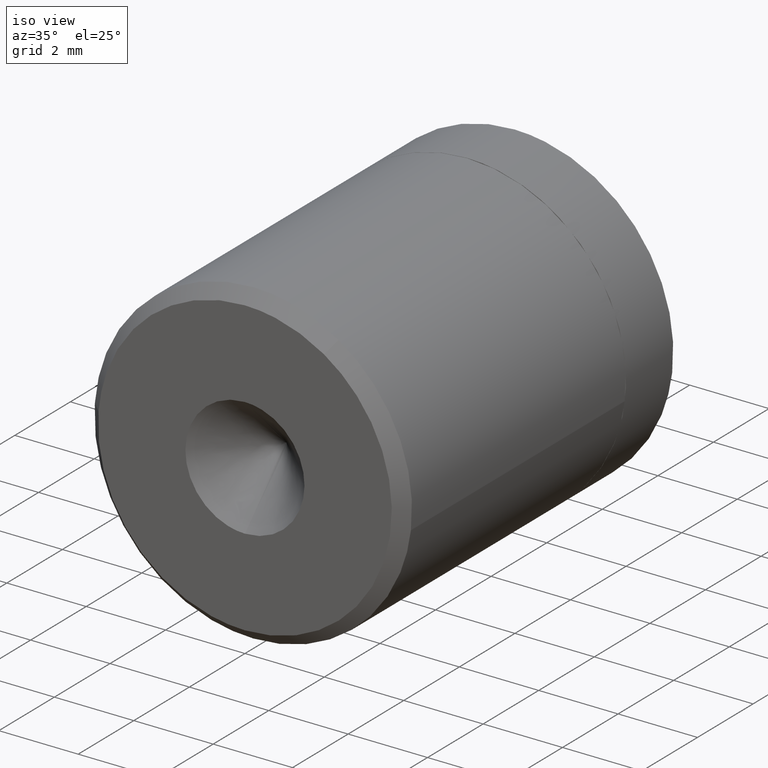
[diagram: clean part render]
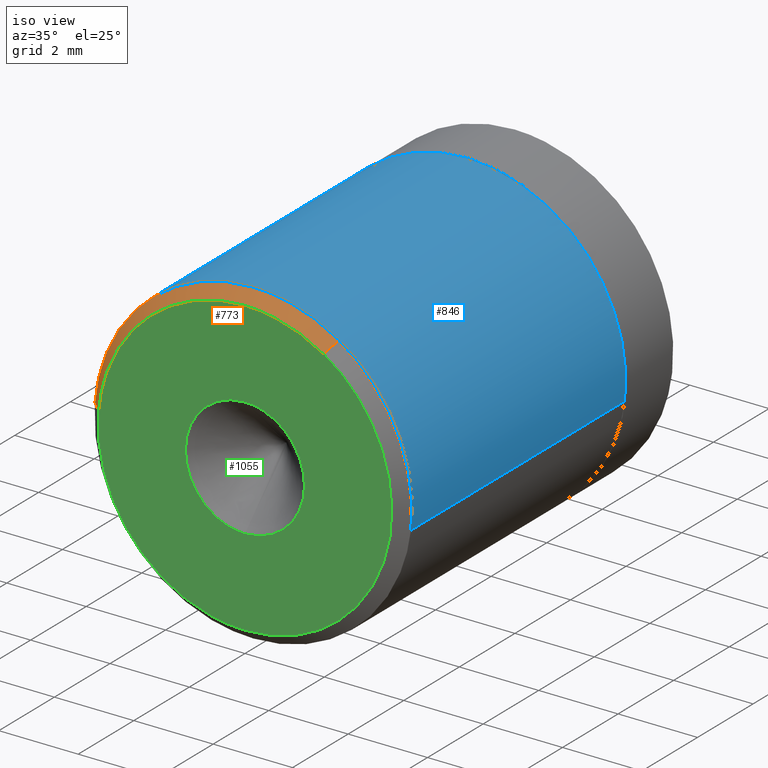
[diagram: same view with three faces highlighted in distinct colors, each labeled with its STEP entity id]
A machine part, iso view with three faces highlighted in distinct colors.
Their STEP definitions:

[orange] entity #773 — the highlighted face is a freeform B-spline surface patch.
#582=CARTESIAN_POINT('',(2.151402098084278,0.300003000000068,3.372158509376904));
#583=VERTEX_POINT('',#582);
#599=CARTESIAN_POINT('',(1.990047397902964,1.696192E-013,3.119247337756639));
#600=VERTEX_POINT('',#599);
#601=CARTESIAN_POINT('',(1.990047397902964,1.696192E-013,3.119247337756639));
#602=CARTESIAN_POINT('',(2.151402098084278,0.300003000000068,3.372158509376904));
#603=QUASI_UNIFORM_CURVE('',1,(#601,#602),.UNSPECIFIED.,.F.,.U.);
#604=EDGE_CURVE('',#600,#583,#603,.T.);
#623=CARTESIAN_POINT('',(-3.688593137895713,1.191157E-012,0.290298575743090));
#624=VERTEX_POINT('',#623);
#640=CARTESIAN_POINT('',(-3.987667341097883,0.300003000000101,0.313836225993938));
#641=VERTEX_POINT('',#640);
#642=CARTESIAN_POINT('',(-3.688593137895713,1.191157E-012,0.290298575743090));
#643=CARTESIAN_POINT('',(-3.987667341097883,0.300003000000101,0.313836225993938));
#644=QUASI_UNIFORM_CURVE('',1,(#642,#643),.UNSPECIFIED.,.F.,.U.);
#645=EDGE_CURVE('',#624,#641,#644,.T.);
#695=CARTESIAN_POINT('',(-3.681116282815173,-0.007500075000000,0.289710134477449));
#696=CARTESIAN_POINT('',(-3.391406148337723,-0.007500075000000,3.970826417292622));
#697=CARTESIAN_POINT('',(0.289710134477451,-0.007500075000000,3.681116282815171));
#698=CARTESIAN_POINT('',(1.208793519046832,-0.007500075000000,3.608782851735413));
#699=CARTESIAN_POINT('',(1.986013530395583,-0.007500075000000,3.112924558467743));
#700=CARTESIAN_POINT('',(-3.995331117554910,0.307690576875004,0.314439378281082));
#701=CARTESIAN_POINT('',(-3.680891739273826,0.307690576875004,4.309770495835993));
#702=CARTESIAN_POINT('',(0.314439378281084,0.307690576875004,3.995331117554908));
#703=CARTESIAN_POINT('',(1.311974409472628,0.307690576875004,3.916823407982783));
#704=CARTESIAN_POINT('',(2.155536812275419,0.307690576875004,3.378639358150241));
#712=(BOUNDED_SURFACE()B_SPLINE_SURFACE(2,1,((#695,#700),(#696,#701),(#697,#702),(#698,#703),(#699,#704)),.UNSPECIFIED.,.F.,.F.,.U.)B_SPLINE_SURFACE_WITH_KNOTS((3,2,3),(2,2),(0.0,6.640150708847104,8.764998935678179),(0.0,0.445743923008503),.UNSPECIFIED.)GEOMETRIC_REPRESENTATION_ITEM()RATIONAL_B_SPLINE_SURFACE(((1.0,1.0),(0.707106781186548,0.707106781186548),(1.0,1.0),(0.906274169979695,0.906274169979695),(0.872532871172386,0.872532871172386)))REPRESENTATION_ITEM('')SURFACE());
#713=CARTESIAN_POINT('',(0.0,0.300003000000004,3.999997999999998));
#714=VERTEX_POINT('',#713);
#715=CARTESIAN_POINT('',(2.151402098084278,0.300003000000068,3.372158509376904));
#716=CARTESIAN_POINT('',(1.167311637862257,0.300003000000004,3.999997999999998));
#717=CARTESIAN_POINT('',(0.0,0.300003000000004,3.999997999999998));
#725=(BOUNDED_CURVE()B_SPLINE_CURVE(2,(#715,#716,#717),.UNSPECIFIED.,.F.,.U.)B_SPLINE_CURVE_WITH_KNOTS((3,3),(0.407950112627478,0.500000000000000),.UNSPECIFIED.)CURVE()GEOMETRIC_REPRESENTATION_ITEM()RATIONAL_B_SPLINE_CURVE((0.863729296954879,0.892156848784185,1.0))REPRESENTATION_ITEM(''));
#726=EDGE_CURVE('',#583,#714,#725,.T.);
#727=ORIENTED_EDGE('',*,*,#726,.T.);
#728=CARTESIAN_POINT('',(0.0,0.300003000000004,3.999997999999998));
#729=CARTESIAN_POINT('',(-3.697560117850483,0.300003000000004,3.999997999999998));
#730=CARTESIAN_POINT('',(-3.987667341097883,0.300003000000101,0.313836225993938));
#738=(BOUNDED_CURVE()B_SPLINE_CURVE(2,(#728,#729,#730),.UNSPECIFIED.,.F.,.U.)B_SPLINE_CURVE_WITH_KNOTS((3,3),(0.500000000000000,0.736331300632704),.UNSPECIFIED.)CURVE()GEOMETRIC_REPRESENTATION_ITEM()RATIONAL_B_SPLINE_CURVE((1.0,0.723120658605271,0.969723356171684))REPRESENTATION_ITEM(''));
#739=EDGE_CURVE('',#714,#641,#738,.T.);
#740=ORIENTED_EDGE('',*,*,#739,.T.);
#741=ORIENTED_EDGE('',*,*,#645,.F.);
#742=CARTESIAN_POINT('',(0.0,0.0,3.699998999999998));
#743=VERTEX_POINT('',#742);
#744=CARTESIAN_POINT('',(0.0,0.0,3.699998999999998));
#745=CARTESIAN_POINT('',(-3.420243894728016,0.0,3.699998999999999));
#746=CARTESIAN_POINT('',(-3.688593137895713,1.191157E-012,0.290298575743090));
#754=(BOUNDED_CURVE()B_SPLINE_CURVE(2,(#744,#745,#746),.UNSPECIFIED.,.F.,.U.)B_SPLINE_CURVE_WITH_KNOTS((3,3),(0.500000000000000,0.736331300631925),.UNSPECIFIED.)CURVE()GEOMETRIC_REPRESENTATION_ITEM()RATIONAL_B_SPLINE_CURVE((1.0,0.723120658606184,0.969723356170058))REPRESENTATION_ITEM(''));
#755=EDGE_CURVE('',#743,#624,#754,.T.);
#756=ORIENTED_EDGE('',*,*,#755,.F.);
#757=CARTESIAN_POINT('',(1.990047397902964,1.696192E-013,3.119247337756640));
#758=CARTESIAN_POINT('',(1.079763513078717,0.0,3.699998999999998));
#759=CARTESIAN_POINT('',(0.0,0.0,3.699998999999998));
#767=(BOUNDED_CURVE()B_SPLINE_CURVE(2,(#757,#758,#759),.UNSPECIFIED.,.F.,.U.)B_SPLINE_CURVE_WITH_KNOTS((3,3),(0.407950112627304,0.500000000000000),.UNSPECIFIED.)CURVE()GEOMETRIC_REPRESENTATION_ITEM()RATIONAL_B_SPLINE_CURVE((0.863729296954772,0.892156848783981,1.0))REPRESENTATION_ITEM(''));
#768=EDGE_CURVE('',#600,#743,#767,.T.);
#769=ORIENTED_EDGE('',*,*,#768,.F.);
#770=ORIENTED_EDGE('',*,*,#604,.T.);
#771=EDGE_LOOP('',(#727,#740,#741,#756,#769,#770));
#772=FACE_OUTER_BOUND('',#771,.T.);
#773=ADVANCED_FACE('',(#772),#712,.T.);

[blue] entity #846 — the highlighted face is a freeform B-spline surface patch.
#580=CARTESIAN_POINT('',(3.972036815488612,0.300002999999665,-0.472135082791438));
#581=VERTEX_POINT('',#580);
#582=CARTESIAN_POINT('',(2.151402098084278,0.300003000000068,3.372158509376904));
#583=VERTEX_POINT('',#582);
#584=CARTESIAN_POINT('',(3.972036815488612,0.300002999999665,-0.472135082791438));
#585=CARTESIAN_POINT('',(3.999998000000000,0.300003000000004,-0.236895511893493));
#586=CARTESIAN_POINT('',(3.999998000000000,0.300003000000004,-2.220446E-015));
#587=CARTESIAN_POINT('',(3.999998000000000,0.300003000000004,2.192773527669965));
#588=CARTESIAN_POINT('',(2.151402098084278,0.300003000000068,3.372158509376905));
#596=(BOUNDED_CURVE()B_SPLINE_CURVE(2,(#584,#585,#586,#587,#588),.UNSPECIFIED.,.F.,.U.)B_SPLINE_CURVE_WITH_KNOTS((3,2,3),(0.229562544944996,0.250000000000000,0.407950112627478),.UNSPECIFIED.)CURVE()GEOMETRIC_REPRESENTATION_ITEM()RATIONAL_B_SPLINE_CURVE((0.956026894192386,0.976056032018338,1.0,0.814949932402363,0.863729296954879))REPRESENTATION_ITEM(''));
#597=EDGE_CURVE('',#581,#583,#596,.T.);
#640=CARTESIAN_POINT('',(-3.987667341097883,0.300003000000101,0.313836225993938));
#641=VERTEX_POINT('',#640);
#647=CARTESIAN_POINT('',(-3.992537781884276,0.300002999999738,0.244192670297197));
#648=VERTEX_POINT('',#647);
#649=CARTESIAN_POINT('',(-3.987667341097882,0.300003000000101,0.313836225993938));
#650=CARTESIAN_POINT('',(-3.990406203231539,0.300003000000004,0.279035682978473));
#651=CARTESIAN_POINT('',(-3.992537781884276,0.300002999999738,0.244192670297197));
#659=(BOUNDED_CURVE()B_SPLINE_CURVE(2,(#649,#650,#651),.UNSPECIFIED.,.F.,.U.)B_SPLINE_CURVE_WITH_KNOTS((3,3),(0.736331300632703,0.739333022584997),.UNSPECIFIED.)CURVE()GEOMETRIC_REPRESENTATION_ITEM()RATIONAL_B_SPLINE_CURVE((0.969723356171682,0.972855538530931,0.976072170999833))REPRESENTATION_ITEM(''));
#660=EDGE_CURVE('',#641,#648,#659,.T.);
#713=CARTESIAN_POINT('',(0.0,0.300003000000004,3.999997999999998));
#714=VERTEX_POINT('',#713);
#715=CARTESIAN_POINT('',(2.151402098084278,0.300003000000068,3.372158509376904));
#716=CARTESIAN_POINT('',(1.167311637862257,0.300003000000004,3.999997999999998));
#717=CARTESIAN_POINT('',(0.0,0.300003000000004,3.999997999999998));
#725=(BOUNDED_CURVE()B_SPLINE_CURVE(2,(#715,#716,#717),.UNSPECIFIED.,.F.,.U.)B_SPLINE_CURVE_WITH_KNOTS((3,3),(0.407950112627478,0.500000000000000),.UNSPECIFIED.)CURVE()GEOMETRIC_REPRESENTATION_ITEM()RATIONAL_B_SPLINE_CURVE((0.863729296954879,0.892156848784185,1.0))REPRESENTATION_ITEM(''));
#726=EDGE_CURVE('',#583,#714,#725,.T.);
#728=CARTESIAN_POINT('',(0.0,0.300003000000004,3.999997999999998));
#729=CARTESIAN_POINT('',(-3.697560117850483,0.300003000000004,3.999997999999998));
#730=CARTESIAN_POINT('',(-3.987667341097883,0.300003000000101,0.313836225993938));
#738=(BOUNDED_CURVE()B_SPLINE_CURVE(2,(#728,#729,#730),.UNSPECIFIED.,.F.,.U.)B_SPLINE_CURVE_WITH_KNOTS((3,3),(0.500000000000000,0.736331300632704),.UNSPECIFIED.)CURVE()GEOMETRIC_REPRESENTATION_ITEM()RATIONAL_B_SPLINE_CURVE((1.0,0.723120658605271,0.969723356171684))REPRESENTATION_ITEM(''));
#739=EDGE_CURVE('',#714,#641,#738,.T.);
#774=CARTESIAN_POINT('',(3.972037112445138,8.182249925000001,-0.472136820592801));
#775=CARTESIAN_POINT('',(3.985549465406806,8.182249925000001,-0.358458824937184));
#776=CARTESIAN_POINT('',(3.992538195552668,8.182249925000001,-0.244194097090891));
#777=CARTESIAN_POINT('',(4.236732292643556,8.182249925000001,3.748344098461778));
#778=CARTESIAN_POINT('',(0.244194097090888,8.182249925000001,3.992538195552666));
#779=CARTESIAN_POINT('',(-3.748344098461780,8.182249925000001,4.236732292643555));
#780=CARTESIAN_POINT('',(-3.992538195552668,8.182249925000001,0.244194097090886));
#781=CARTESIAN_POINT('',(3.972037112445138,0.102946826875003,-0.472136820592801));
#782=CARTESIAN_POINT('',(3.985549465406806,0.102946826875002,-0.358458824937184));
#783=CARTESIAN_POINT('',(3.992538195552668,0.102946826875003,-0.244194097090891));
#784=CARTESIAN_POINT('',(4.236732292643556,0.102946826875002,3.748344098461778));
#785=CARTESIAN_POINT('',(0.244194097090888,0.102946826875003,3.992538195552666));
#786=CARTESIAN_POINT('',(-3.748344098461780,0.102946826875002,4.236732292643555));
#787=CARTESIAN_POINT('',(-3.992538195552668,0.102946826875003,0.244194097090886));
#795=(BOUNDED_SURFACE()B_SPLINE_SURFACE(2,1,((#774,#781),(#775,#782),(#776,#783),(#777,#784),(#778,#785),(#779,#786),(#780,#787)),.UNSPECIFIED.,.F.,.F.,.U.)B_SPLINE_SURFACE_WITH_KNOTS((3,2,2,3),(2,2),(0.0,0.265096613644611,6.892511954759883,13.519927295875160),(0.0,8.079303098124999),.UNSPECIFIED.)GEOMETRIC_REPRESENTATION_ITEM()RATIONAL_B_SPLINE_SURFACE(((0.977505800795127,0.977505800795127),(0.988284271247462,0.988284271247462),(1.0,1.0),(0.707106781186548,0.707106781186548),(1.0,1.0),(0.707106781186548,0.707106781186548),(1.0,1.0)))REPRESENTATION_ITEM('')SURFACE());
#796=ORIENTED_EDGE('',*,*,#597,.F.);
#797=CARTESIAN_POINT('',(3.972037806257247,7.989999999999999,-0.472135219678184));
#798=VERTEX_POINT('',#797);
#799=CARTESIAN_POINT('',(3.972037806257247,7.989999999999999,-0.472135219678184));
#800=CARTESIAN_POINT('',(3.972036815488612,0.300002999999665,-0.472135082791438));
#801=QUASI_UNIFORM_CURVE('',1,(#799,#800),.UNSPECIFIED.,.F.,.U.);
#802=EDGE_CURVE('',#798,#581,#801,.T.);
#803=ORIENTED_EDGE('',*,*,#802,.F.);
#804=CARTESIAN_POINT('',(0.0,7.990000000000000,3.999999999999997));
#805=VERTEX_POINT('',#804);
#806=CARTESIAN_POINT('',(3.972037806257247,7.989999999999999,-0.472135219678184));
#807=CARTESIAN_POINT('',(4.000000000000000,7.990000000000000,-0.236895639867429));
#808=CARTESIAN_POINT('',(4.0,7.990000000000000,-2.220446E-015));
#809=CARTESIAN_POINT('',(4.000000000000000,7.990000000000000,3.999999999999998));
#810=CARTESIAN_POINT('',(0.0,7.990000000000000,3.999999999999997));
#818=(BOUNDED_CURVE()B_SPLINE_CURVE(2,(#806,#807,#808,#809,#810),.UNSPECIFIED.,.F.,.U.)B_SPLINE_CURVE_WITH_KNOTS((3,2,3),(0.229562544142837,0.250000000000000,0.500000000000000),.UNSPECIFIED.)CURVE()GEOMETRIC_REPRESENTATION_ITEM()RATIONAL_B_SPLINE_CURVE((0.956026892620120,0.976056031078550,1.0,0.707106781186548,1.0))REPRESENTATION_ITEM(''));
#819=EDGE_CURVE('',#798,#805,#818,.T.);
#820=ORIENTED_EDGE('',*,*,#819,.T.);
#821=CARTESIAN_POINT('',(-3.992538779092364,7.990000000000000,0.244192746497483));
#822=VERTEX_POINT('',#821);
#823=CARTESIAN_POINT('',(0.0,7.990000000000000,3.999999999999997));
#824=CARTESIAN_POINT('',(-3.762825571709131,7.989999999999999,3.999999999999997));
#825=CARTESIAN_POINT('',(-3.992538779092365,7.990000000000000,0.244192746497483));
#833=(BOUNDED_CURVE()B_SPLINE_CURVE(2,(#823,#824,#825),.UNSPECIFIED.,.F.,.U.)B_SPLINE_CURVE_WITH_KNOTS((3,3),(0.500000000000000,0.739333021930164),.UNSPECIFIED.)CURVE()GEOMETRIC_REPRESENTATION_ITEM()RATIONAL_B_SPLINE_CURVE((1.0,0.719603923354095,0.976072169596401))REPRESENTATION_ITEM(''));
#834=EDGE_CURVE('',#805,#822,#833,.T.);
#835=ORIENTED_EDGE('',*,*,#834,.T.);
#836=CARTESIAN_POINT('',(-3.992538779092364,7.990000000000000,0.244192746497483));
#837=CARTESIAN_POINT('',(-3.992537781884276,0.300002999999738,0.244192670297197));
#838=QUASI_UNIFORM_CURVE('',1,(#836,#837),.UNSPECIFIED.,.F.,.U.);
#839=EDGE_CURVE('',#822,#648,#838,.T.);
#840=ORIENTED_EDGE('',*,*,#839,.T.);
#841=ORIENTED_EDGE('',*,*,#660,.F.);
#842=ORIENTED_EDGE('',*,*,#739,.F.);
#843=ORIENTED_EDGE('',*,*,#726,.F.);
#844=EDGE_LOOP('',(#796,#803,#820,#835,#840,#841,#842,#843));
#845=FACE_OUTER_BOUND('',#844,.T.);
#846=ADVANCED_FACE('',(#845),#795,.T.);

[green] entity #1055 — the highlighted face is a freeform B-spline surface patch.
#599=CARTESIAN_POINT('',(1.990047397902964,1.696192E-013,3.119247337756639));
#600=VERTEX_POINT('',#599);
#606=CARTESIAN_POINT('',(0.0,0.0,-3.699999000000002));
#607=VERTEX_POINT('',#606);
#608=CARTESIAN_POINT('',(0.0,0.0,-3.699999000000002));
#609=CARTESIAN_POINT('',(3.699999000000000,0.0,-3.699999000000002));
#610=CARTESIAN_POINT('',(3.699999000000000,0.0,-2.220446E-015));
#611=CARTESIAN_POINT('',(3.699999000000001,0.0,2.028315979056592));
#612=CARTESIAN_POINT('',(1.990047397902964,1.696192E-013,3.119247337756640));
#620=(BOUNDED_CURVE()B_SPLINE_CURVE(2,(#608,#609,#610,#611,#612),.UNSPECIFIED.,.F.,.U.)B_SPLINE_CURVE_WITH_KNOTS((3,2,3),(0.0,0.250000000000000,0.407950112627304),.UNSPECIFIED.)CURVE()GEOMETRIC_REPRESENTATION_ITEM()RATIONAL_B_SPLINE_CURVE((1.0,0.707106781186548,1.0,0.814949932402566,0.863729296954772))REPRESENTATION_ITEM(''));
#621=EDGE_CURVE('',#607,#600,#620,.T.);
#623=CARTESIAN_POINT('',(-3.688593137895713,1.191157E-012,0.290298575743090));
#624=VERTEX_POINT('',#623);
#625=CARTESIAN_POINT('',(-3.688593137895713,1.191157E-012,0.290298575743090));
#626=CARTESIAN_POINT('',(-3.699999000000001,0.0,0.145373356647378));
#627=CARTESIAN_POINT('',(-3.699999000000000,0.0,-2.220446E-015));
#628=CARTESIAN_POINT('',(-3.699999000000000,0.0,-3.699999000000002));
#629=CARTESIAN_POINT('',(0.0,0.0,-3.699999000000002));
#637=(BOUNDED_CURVE()B_SPLINE_CURVE(2,(#625,#626,#627,#628,#629),.UNSPECIFIED.,.F.,.U.)B_SPLINE_CURVE_WITH_KNOTS((3,2,3),(0.736331300631924,0.750000000000000,1.0),.UNSPECIFIED.)CURVE()GEOMETRIC_REPRESENTATION_ITEM()RATIONAL_B_SPLINE_CURVE((0.969723356170057,0.983986122580363,1.0,0.707106781186548,1.0))REPRESENTATION_ITEM(''));
#638=EDGE_CURVE('',#624,#607,#637,.T.);
#742=CARTESIAN_POINT('',(0.0,0.0,3.699998999999998));
#743=VERTEX_POINT('',#742);
#744=CARTESIAN_POINT('',(0.0,0.0,3.699998999999998));
#745=CARTESIAN_POINT('',(-3.420243894728016,0.0,3.699998999999999));
#746=CARTESIAN_POINT('',(-3.688593137895713,1.191157E-012,0.290298575743090));
#754=(BOUNDED_CURVE()B_SPLINE_CURVE(2,(#744,#745,#746),.UNSPECIFIED.,.F.,.U.)B_SPLINE_CURVE_WITH_KNOTS((3,3),(0.500000000000000,0.736331300631925),.UNSPECIFIED.)CURVE()GEOMETRIC_REPRESENTATION_ITEM()RATIONAL_B_SPLINE_CURVE((1.0,0.723120658606184,0.969723356170058))REPRESENTATION_ITEM(''));
#755=EDGE_CURVE('',#743,#624,#754,.T.);
#757=CARTESIAN_POINT('',(1.990047397902964,1.696192E-013,3.119247337756640));
#758=CARTESIAN_POINT('',(1.079763513078717,0.0,3.699998999999998));
#759=CARTESIAN_POINT('',(0.0,0.0,3.699998999999998));
#767=(BOUNDED_CURVE()B_SPLINE_CURVE(2,(#757,#758,#759),.UNSPECIFIED.,.F.,.U.)B_SPLINE_CURVE_WITH_KNOTS((3,3),(0.407950112627304,0.500000000000000),.UNSPECIFIED.)CURVE()GEOMETRIC_REPRESENTATION_ITEM()RATIONAL_B_SPLINE_CURVE((0.863729296954772,0.892156848783981,1.0))REPRESENTATION_ITEM(''));
#768=EDGE_CURVE('',#600,#743,#767,.T.);
#920=CARTESIAN_POINT('',(0.0,7.408715E-016,1.499999999999998));
#921=VERTEX_POINT('',#920);
#922=CARTESIAN_POINT('',(0.0,7.408715E-016,-1.500000000000003));
#923=VERTEX_POINT('',#922);
#924=CARTESIAN_POINT('',(0.0,0.0,1.499999999999998));
#925=CARTESIAN_POINT('',(-1.500000000000000,0.0,1.499999999999998));
#926=CARTESIAN_POINT('',(-1.500000000000000,0.0,-2.220446E-015));
#927=CARTESIAN_POINT('',(-1.500000000000000,0.0,-1.500000000000002));
#928=CARTESIAN_POINT('',(0.0,0.0,-1.500000000000002));
#936=(BOUNDED_CURVE()B_SPLINE_CURVE(2,(#924,#925,#926,#927,#928),.UNSPECIFIED.,.F.,.U.)B_SPLINE_CURVE_WITH_KNOTS((3,2,3),(0.0,0.500000000000000,1.0),.UNSPECIFIED.)CURVE()GEOMETRIC_REPRESENTATION_ITEM()RATIONAL_B_SPLINE_CURVE((1.0,0.707106781186548,1.0,0.707106781186548,1.0))REPRESENTATION_ITEM(''));
#937=EDGE_CURVE('',#921,#923,#936,.T.);
#1021=CARTESIAN_POINT('',(0.0,0.0,-1.500000000000002));
#1022=CARTESIAN_POINT('',(1.500000000000000,0.0,-1.500000000000002));
#1023=CARTESIAN_POINT('',(1.500000000000000,0.0,-2.220446E-015));
#1024=CARTESIAN_POINT('',(1.500000000000000,0.0,1.499999999999998));
#1025=CARTESIAN_POINT('',(0.0,0.0,1.499999999999998));
#1033=(BOUNDED_CURVE()B_SPLINE_CURVE(2,(#1021,#1022,#1023,#1024,#1025),.UNSPECIFIED.,.F.,.U.)B_SPLINE_CURVE_WITH_KNOTS((3,2,3),(0.0,0.500000000000000,1.0),.UNSPECIFIED.)CURVE()GEOMETRIC_REPRESENTATION_ITEM()RATIONAL_B_SPLINE_CURVE((1.0,0.707106781186548,1.0,0.707106781186548,1.0))REPRESENTATION_ITEM(''));
#1034=EDGE_CURVE('',#923,#921,#1033,.T.);
#1040=CARTESIAN_POINT('',(-4.068485317837866,0.0,4.069629024689140));
#1041=CARTESIAN_POINT('',(-4.068485317837866,0.0,-4.069629090850280));
#1042=CARTESIAN_POINT('',(4.068206250158545,0.0,4.069629024689140));
#1043=CARTESIAN_POINT('',(4.068206250158545,0.0,-4.069629090850280));
#1044=B_SPLINE_SURFACE_WITH_KNOTS('',1,1,((#1040,#1042),(#1041,#1043)),.UNSPECIFIED.,.F.,.F.,.U.,(2,2),(2,2),(0.0,8.139258115539420),(0.0,8.136691567996412),.UNSPECIFIED.);
#1045=ORIENTED_EDGE('',*,*,#621,.T.);
#1046=ORIENTED_EDGE('',*,*,#768,.T.);
#1047=ORIENTED_EDGE('',*,*,#755,.T.);
#1048=ORIENTED_EDGE('',*,*,#638,.T.);
#1049=EDGE_LOOP('',(#1045,#1046,#1047,#1048));
#1050=FACE_OUTER_BOUND('',#1049,.T.);
#1051=ORIENTED_EDGE('',*,*,#937,.F.);
#1052=ORIENTED_EDGE('',*,*,#1034,.F.);
#1053=EDGE_LOOP('',(#1051,#1052));
#1054=FACE_BOUND('',#1053,.T.);
#1055=ADVANCED_FACE('',(#1050,#1054),#1044,.T.);